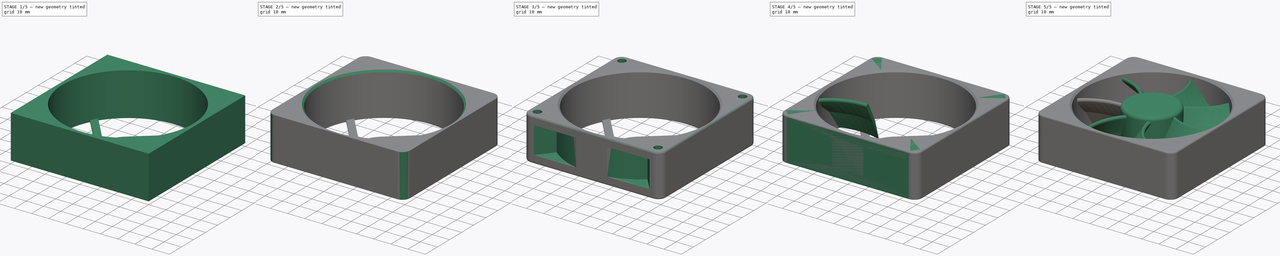
[diagram: build sequence overview — one tinted view per stage of 5, left to right]
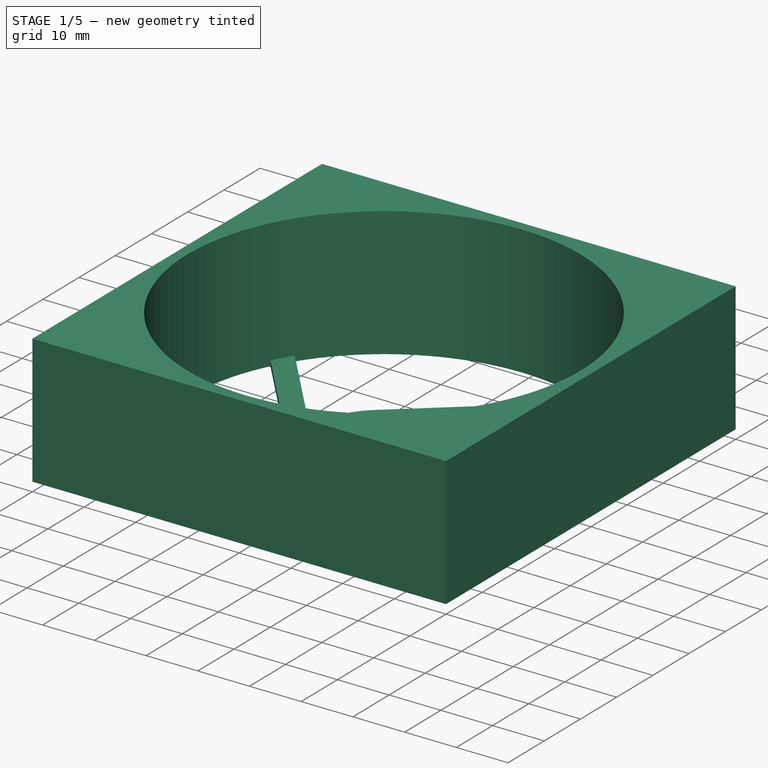
[diagram: stage 1 of 5 — iso view after this stage's code; geometry added in this stage tinted green]
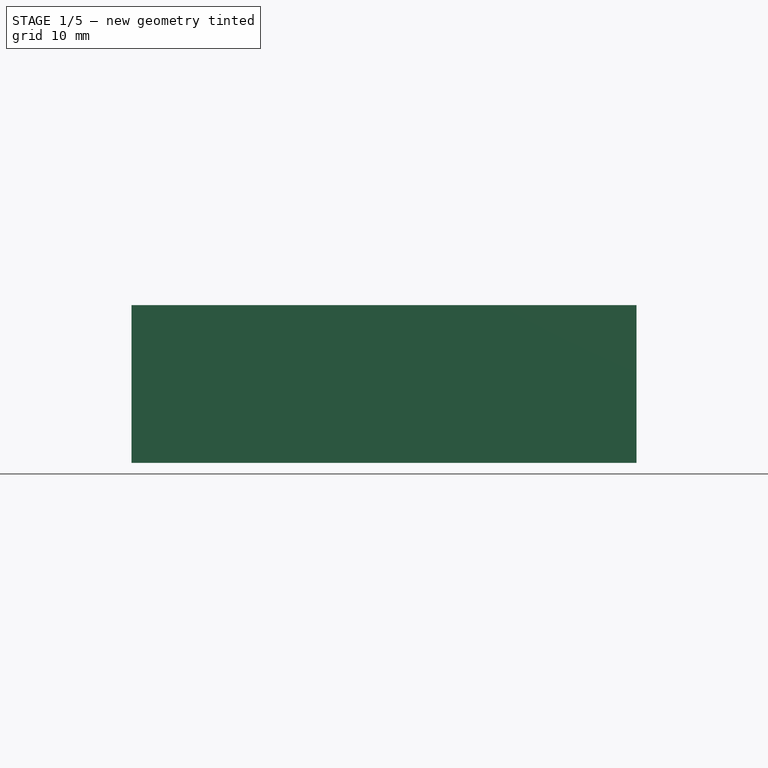
[diagram: stage 1 of 5 — front view after this stage's code; geometry added in this stage tinted green]
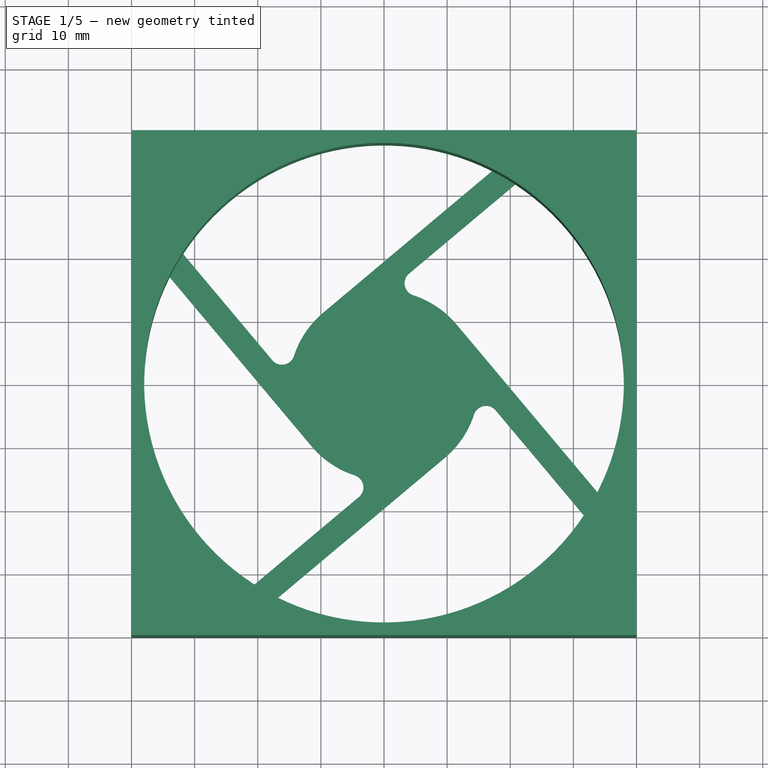
[diagram: stage 1 of 5 — top view after this stage's code; geometry added in this stage tinted green]
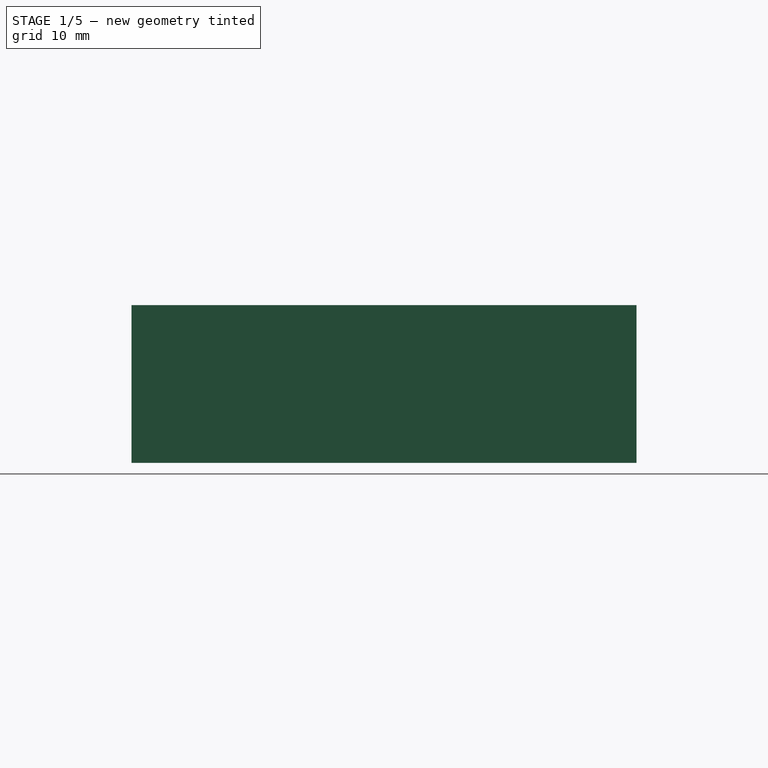
[diagram: stage 1 of 5 — right view after this stage's code; geometry added in this stage tinted green]
FCSTD DOCUMENT  (FreeCAD 0.18R4 (GitTag))
Label: Fan_Parametric
License: All rights reserved
LicenseURL: http://en.wikipedia.org/wiki/All_rights_reserved
objects: Sketcher::SketchObject×10, PartDesign::Fillet×5, PartDesign::Body×3, PartDesign::Pocket×3, PartDesign::MultiTransform×3, PartDesign::Pad×2, PartDesign::Plane×2, PartDesign::Groove×2, PartDesign::PolarPattern×2, Spreadsheet::Sheet×1, PartDesign::AdditivePipe×1, Part::FeaturePython×1, PartDesign::Chamfer×1, PartDesign::Mirrored×1
note: 44 computed .brp shape members not serialized (recipe doc carries the construction recipe); baked Part::Feature solids carry a one-line shape summary decoded from their .brp

FEATURE [Sketcher::SketchObject] Sketch009  label="Sketch_OuterFrame"
  MapMode = 5
  Support = -> [XY_Plane003]
  expr: Constraints[9] = Spreadsheet.Lh
  sketch-geometry (4):
    g0: LineSegment StartX=-40 StartY=40 StartZ=0 EndX=40 EndY=40 EndZ=0
    g1: LineSegment StartX=40 StartY=40 StartZ=0 EndX=40 EndY=-40 EndZ=0
    g2: LineSegment StartX=40 StartY=-40 StartZ=0 EndX=-40 EndY=-40 EndZ=0
    g3: LineSegment StartX=-40 StartY=-40 StartZ=0 EndX=-40 EndY=40 EndZ=0
  constraints (10):
    c: Coincident(g0,g1)
    c: Coincident(g1,g2)
    c: Coincident(g2,g3)
    c: Coincident(g3,g0)
    c: Horizontal(g2)
    c: Vertical(g3)
    c: Equal(g0,g1)
    c: Symmetric(g0,g1,g-1)
    c: Symmetric(g0,g0,g-2)
    c: DistanceY(g1,g1) = 80
FEATURE [PartDesign::Pad] Pad001  label="Pad__OuterFrame"
  Length = 24
  Length2 = 1
  Profile = -> Sketch009
  Type = 4
  expr: Length = Spreadsheet.H - 1
FEATURE [Sketcher::SketchObject] Sketch010  label="Sketch_InnerCylinder"
  MapMode = 5
  Placement = pos=(0,0,24) rot=(0,0,1;0rad)
  Support = -> [Pad001]
  expr: Constraints[1] = Spreadsheet.Lh - 2 * Spreadsheet.T
  sketch-geometry (1):
    g0: Circle CenterX=0 CenterY=0 CenterZ=0 NormalX=0 NormalY=0 NormalZ=1 AngleXU=0 Radius=38
  constraints (2):
    c: Coincident(g0,g-1)
    c: Diameter(g0) = 76
FEATURE [PartDesign::Pocket] Pocket  label="Pocket_InnerCylinder"
  BaseFeature = -> Pad001
  Length = 24
  Length2 = 100
  Profile = -> Sketch010
  Type = 0
  expr: Length = Spreadsheet.H - 1
FEATURE [Sketcher::SketchObject] Sketch011  label="Sketch_FrameRear"
  MapMode = 5
  Placement = pos=(0,0,-1) rot=(1,0,0;3.14159rad)
  Support = -> [Pocket]
  expr: Constraints[20] = Spreadsheet.Lh / 20
  expr: Constraints[3] = Spreadsheet.Di
  expr: Constraints[1] = Spreadsheet.Lh - 2 * Spreadsheet.T
  sketch-geometry (8):
    g0: Circle [constr] CenterX=0 CenterY=0 CenterZ=0 NormalX=0 NormalY=0 NormalZ=1 AngleXU=0 Radius=38
    g1: Circle [constr] CenterX=0 CenterY=0 CenterZ=0 NormalX=0 NormalY=0 NormalZ=1 AngleXU=0 Radius=15
    g2: LineSegment StartX=9.64185 StartY=11.4906 StartZ=0 EndX=-17.104 EndY=33.9331 EndZ=0
    g3: ArcOfCircle CenterX=0 CenterY=0 CenterZ=0 NormalX=0 NormalY=0 NormalZ=1 AngleXU=0 Radius=38 StartAngle=0.578988 EndAngle=2.03768
    g4: ArcOfCircle CenterX=0 CenterY=0 CenterZ=0 NormalX=0 NormalY=0 NormalZ=1 AngleXU=0 Radius=15 StartAngle=0.314758 EndAngle=0.872661
    g5: LineSegment StartX=31.8066 StartY=20.7927 StartZ=0 EndX=17.6969 EndY=3.97739 EndZ=0
    g6: ArcOfCircle CenterX=16.1648 CenterY=5.26296 CenterZ=0 NormalX=0 NormalY=0 NormalZ=1 AngleXU=0 Radius=2 StartAngle=3.45635 EndAngle=5.58505
    g7: LineSegment [constr] StartX=11.4907 StartY=-9.64178 StartZ=0 EndX=33.9331 EndY=17.104 EndZ=0
  constraints (22):
    c: Coincident(g0,g-1)
    c: Diameter(g0) = 76
    c: Coincident(g1,g-1)
    c: Diameter(g1) = 30
    c: PointOnObject(g2,g1)
    c: PointOnObject(g2,g0)
    c: Tangent(g2,g1)
    c: Angle(g2,g-1) = 0.698132
    c: Coincident(g3,g-1)
    c: Coincident(g3,g2)
    c: Coincident(g4,g3)
    c: Coincident(g4,g2)
    c: Coincident(g3,g5)
    c: Tangent(g5,g6) = 1.5708
    c: Tangent(g6,g4) = 1.5708
    c: PointOnObject(g7,g1)
    c: PointOnObject(g7,g0)
    c: Tangent(g7,g1)
    c: Angle(g2,g7) = 1.5708
    c: Parallel(g5,g7)
    c: Distance(g5,g7) = 4
    c: Radius(g6) = 2
FEATURE [PartDesign::Pocket] Pocket001  label="Pocket_FrameRear"
  BaseFeature = -> Pocket
  Length = 7
  Length2 = 96
  Midplane = true
  Profile = -> Sketch011
  Type = 1
FEATURE [PartDesign::PolarPattern] PolarPattern
  Angle = 360
  Axis = -> Sketch011 [N_Axis]
  Occurrences = 4
FEATURE [PartDesign::MultiTransform] MultiTransform
  BaseFeature = -> Pocket001
  Originals = -> [Pocket001]
  Transformations = -> [PolarPattern]
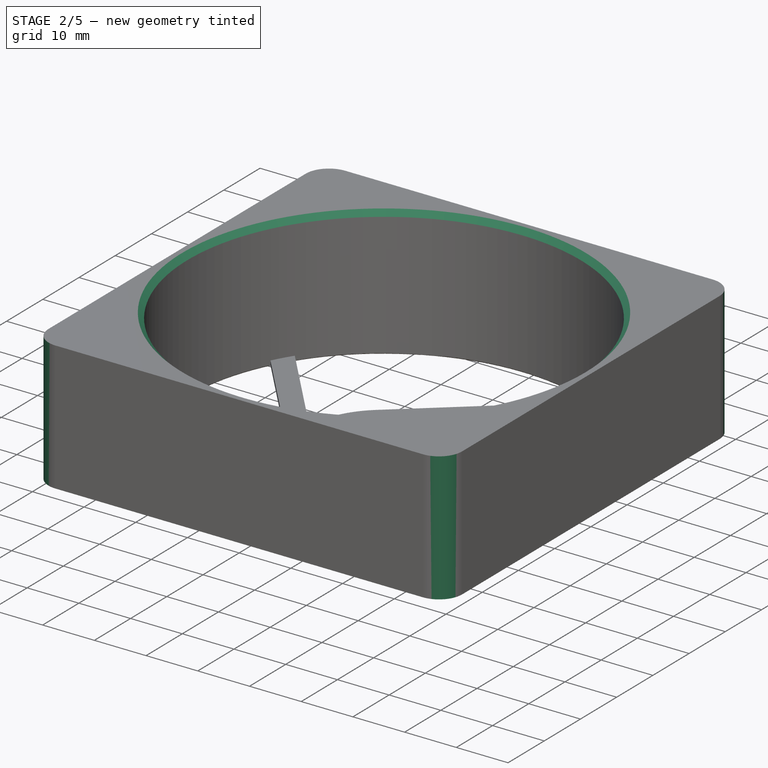
[diagram: stage 2 of 5 — iso view after this stage's code; geometry added in this stage tinted green]
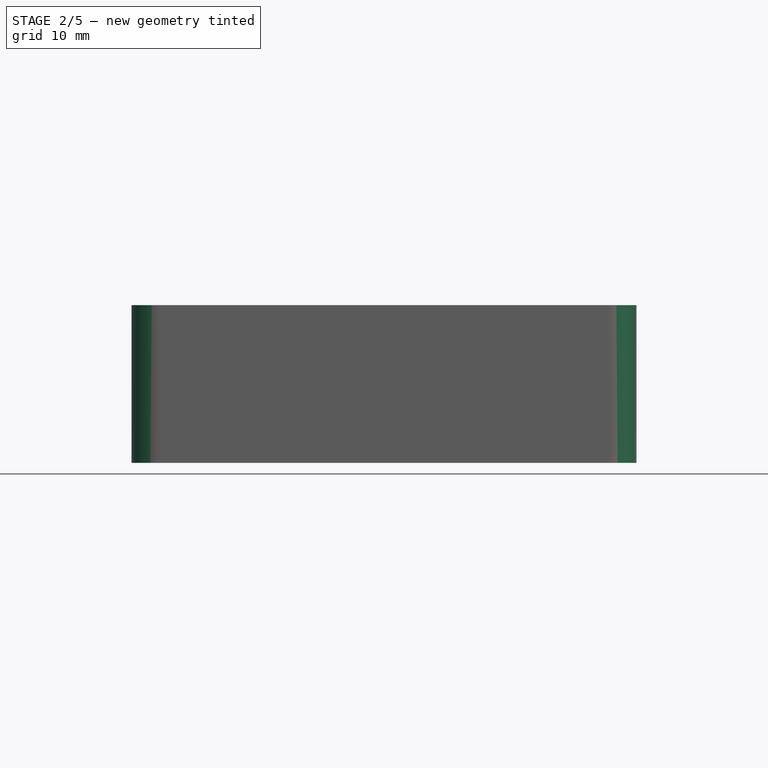
[diagram: stage 2 of 5 — front view after this stage's code; geometry added in this stage tinted green]
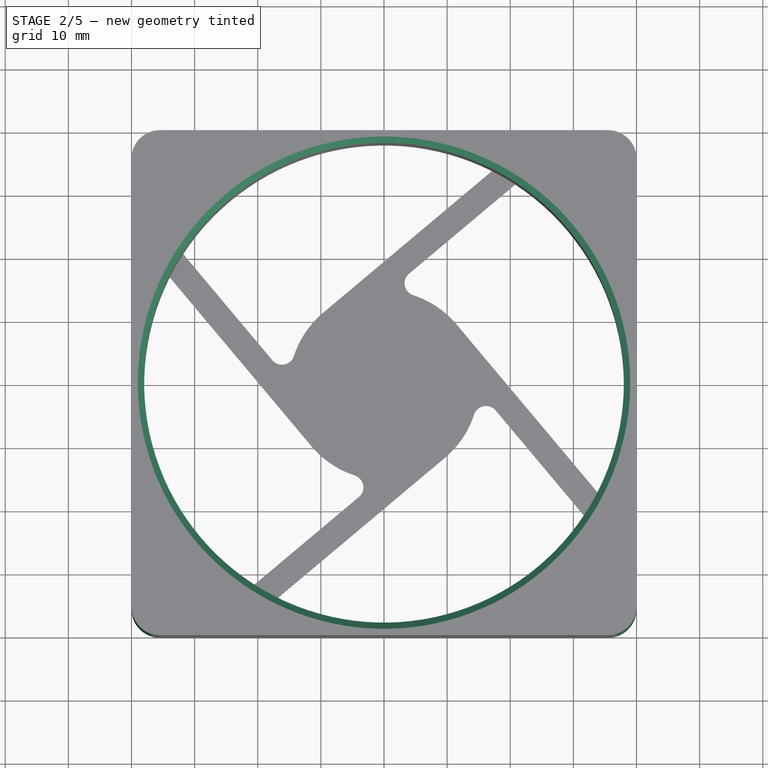
[diagram: stage 2 of 5 — top view after this stage's code; geometry added in this stage tinted green]
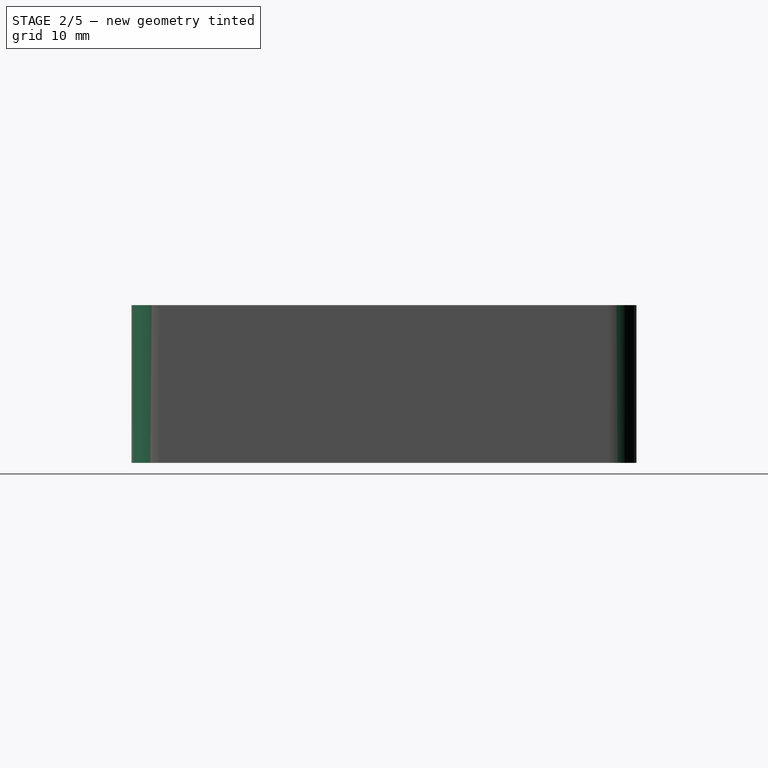
[diagram: stage 2 of 5 — right view after this stage's code; geometry added in this stage tinted green]
FEATURE [PartDesign::Fillet] Fillet001  label="Fillet_InnerCylRear"
  Base = -> MultiTransform [Edge25,Edge24,Edge23,Edge22,Edge26,Edge16,Edge15,Edge13,Edge19,Edge21,Edge31,Edge29]
  BaseFeature = -> MultiTransform
  Radius = 0.2
FEATURE [PartDesign::Fillet] Fillet002  label="Fillet_OuterEdges"
  Base = -> Fillet001 [Edge35,Edge36,Edge40,Edge38]
  BaseFeature = -> Fillet001
  Radius = 4.5
  expr: Radius = Spreadsheet.Ddh
FEATURE [PartDesign::Chamfer] Chamfer  label="Chamfer_InnerCylFront"
  Base = -> Fillet002 [Edge87]
  BaseFeature = -> Fillet002
  Size = 1
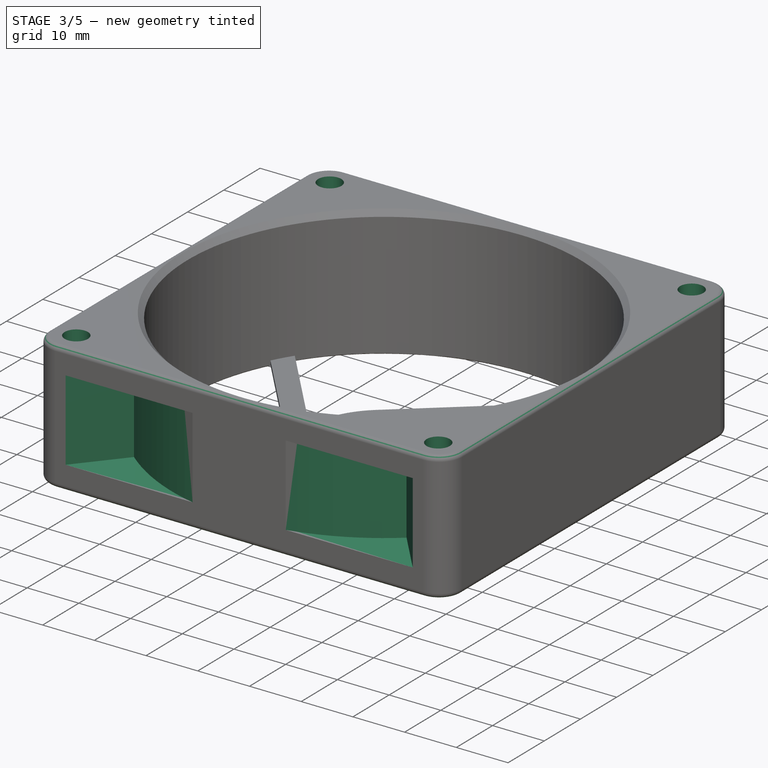
[diagram: stage 3 of 5 — iso view after this stage's code; geometry added in this stage tinted green]
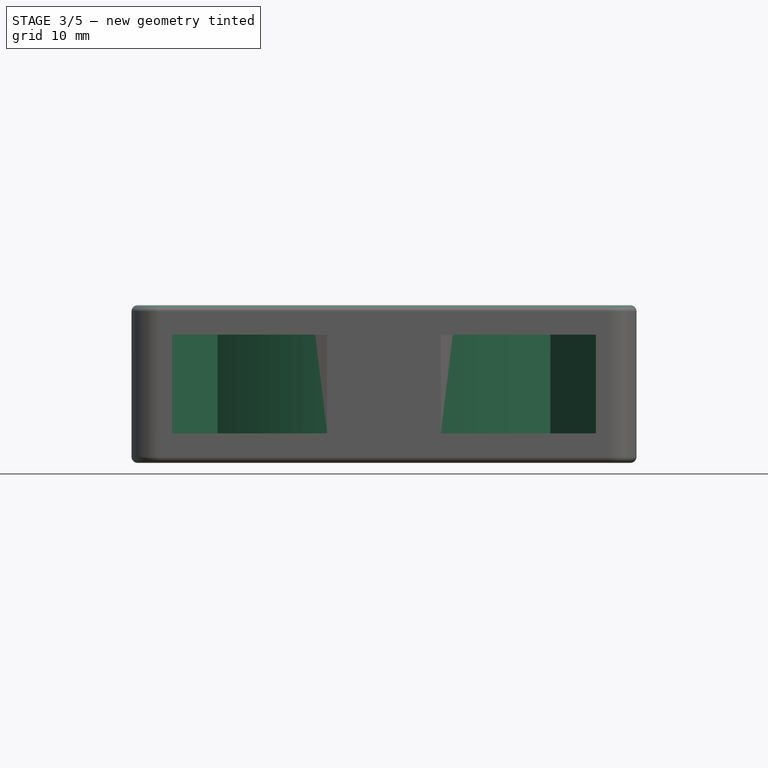
[diagram: stage 3 of 5 — front view after this stage's code; geometry added in this stage tinted green]
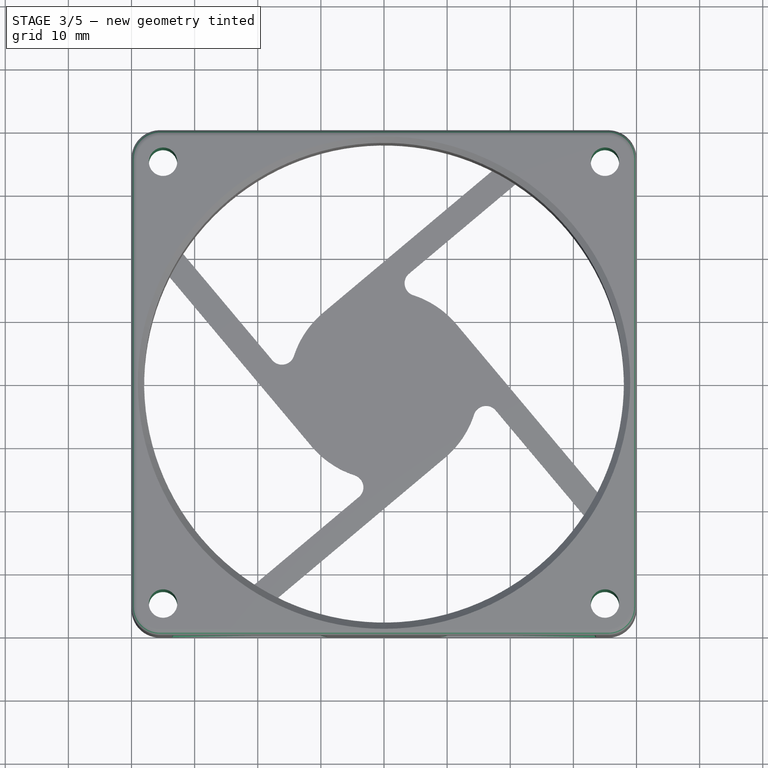
[diagram: stage 3 of 5 — top view after this stage's code; geometry added in this stage tinted green]
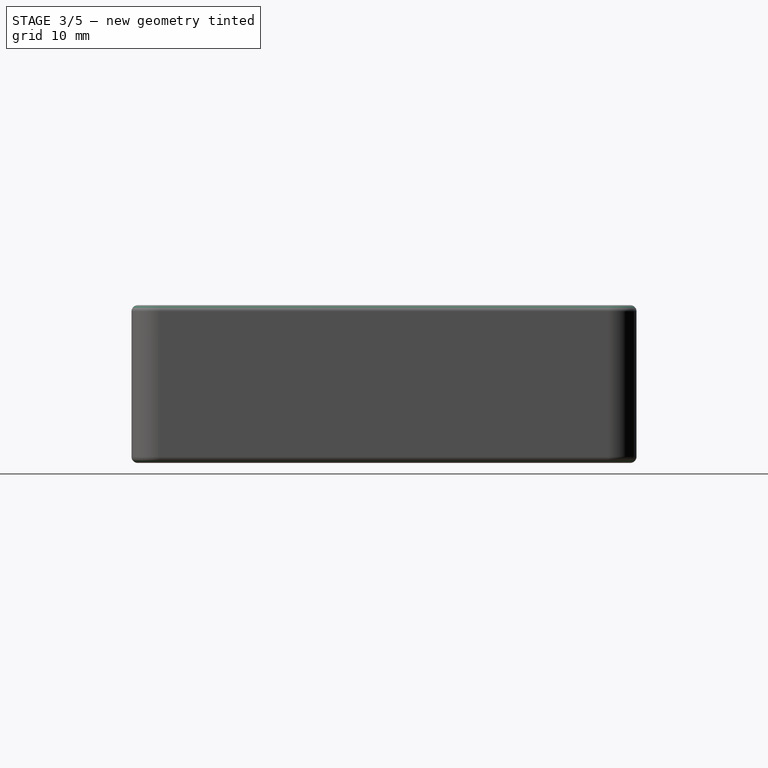
[diagram: stage 3 of 5 — right view after this stage's code; geometry added in this stage tinted green]
FEATURE [PartDesign::Fillet] Fillet004  label="Fillet_OuterFrameRear"
  Base = -> Chamfer [Edge51,Edge14]
  BaseFeature = -> Chamfer
  Radius = 1
FEATURE [Sketcher::SketchObject] Sketch012  label="Sketch_MountHoles"
  MapMode = 5
  Placement = pos=(0,0,24) rot=(0,0,1;0rad)
  Support = -> [Fillet004]
  expr: Constraints[4] = Spreadsheet.Ddh
  expr: Constraints[2] = Spreadsheet.Ldh / 2
  expr: Constraints[1] = Spreadsheet.Ldh
  sketch-geometry (2):
    g0: Circle CenterX=-35 CenterY=35 CenterZ=0 NormalX=0 NormalY=0 NormalZ=1 AngleXU=0 Radius=2.25
    g1: Circle CenterX=35 CenterY=35 CenterZ=0 NormalX=0 NormalY=0 NormalZ=1 AngleXU=0 Radius=2.25
  constraints (5):
    c: Symmetric(g0,g1,g-2)
    c: DistanceX(g0,g1) = 70
    c: DistanceY(g-1,g1) = 35
    c: Equal(g0,g1)
    c: Diameter(g0) = 4.5
FEATURE [PartDesign::Pocket] Pocket002  label="Pocket_MountHoles"
  BaseFeature = -> Fillet004
  Length = 5
  Length2 = 100
  Profile = -> Sketch012
  Type = 1
FEATURE [PartDesign::Mirrored] Mirrored  label="Mirrored_MountHoles"
  MirrorPlane = -> XZ_Plane003
FEATURE [PartDesign::MultiTransform] MultiTransform001  label="MultiTransform_MountHoles"
  BaseFeature = -> Pocket002
  Originals = -> [Pocket002]
  Transformations = -> [Mirrored]
FEATURE [Sketcher::SketchObject] Sketch013  label="Sketch_OuterSideGroove"
  MapMode = 5
  Placement = pos=(0,0,0) rot=(0.57735,0.57735,0.57735;2.0944rad)
  Support = -> [YZ_Plane003]
  expr: Constraints[14] = Spreadsheet_Fan_dim.Lh / 2 * 1.5
  expr: Constraints[12] = Spreadsheet.Lh / 2 + 1
  expr: Constraints[11] = Spreadsheet.H / 2 - 1
  expr: Constraints[8] = Spreadsheet.H / 1.6
  sketch-geometry (5):
    g0: LineSegment StartX=-60 StartY=19.3125 StartZ=0 EndX=-41 EndY=19.3125 EndZ=0
    g1: LineSegment StartX=-41 StartY=19.3125 StartZ=0 EndX=-41 EndY=3.6875 EndZ=0
    g2: LineSegment StartX=-41 StartY=3.6875 StartZ=0 EndX=-60 EndY=3.6875 EndZ=0
    g3: LineSegment StartX=-60 StartY=3.6875 StartZ=0 EndX=-60 EndY=19.3125 EndZ=0
    g4: LineSegment [constr] StartX=-60 StartY=11.5 StartZ=0 EndX=-41 EndY=11.5 EndZ=0
  constraints (15):
    c: Coincident(g0,g1)
    c: Coincident(g1,g2)
    c: Coincident(g2,g3)
    c: Coincident(g3,g0)
    c: Horizontal(g0)
    c: Horizontal(g2)
    c: Vertical(g1)
    c: Vertical(g3)
    c: DistanceY(g3,g3) = 15.625
    c: PointOnObject(g4,g3)
    c: Symmetric(g0,g2,g4)
    c: DistanceY(g-1,g4) = 11.5
    c: DistanceX(g1,g-1) = 41
    c: PointOnObject(g4,g1)
    c: DistanceX(g0,g-1) = 60
FEATURE [PartDesign::Groove] Groove001  label="Groove_OuterSide"
  Angle = 80
  Axis = (-2e-16,3e-16,1)
  Base = (0,0,0)
  BaseFeature = -> MultiTransform001
  Midplane = true
  Profile = -> Sketch013
  ReferenceAxis = -> Sketch013 [V_Axis]
  expr: Angle = Spreadsheet_Fan_dim.GrAngle
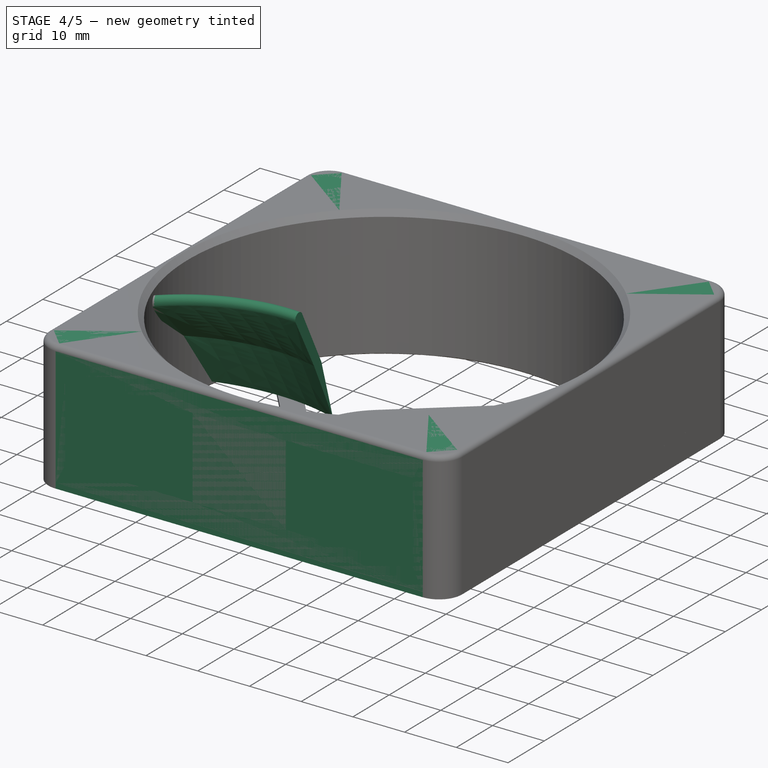
[diagram: stage 4 of 5 — iso view after this stage's code; geometry added in this stage tinted green]
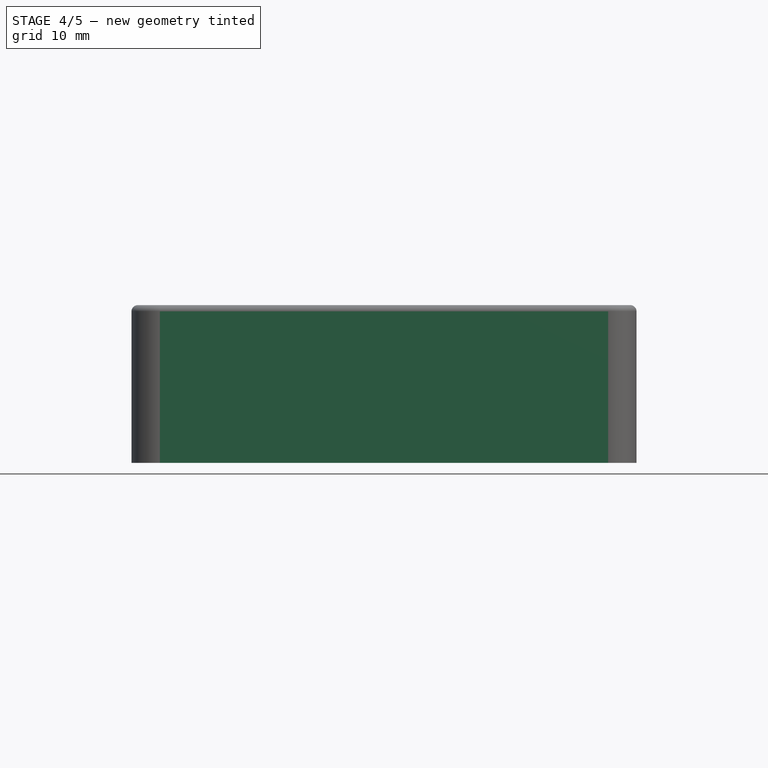
[diagram: stage 4 of 5 — front view after this stage's code; geometry added in this stage tinted green]
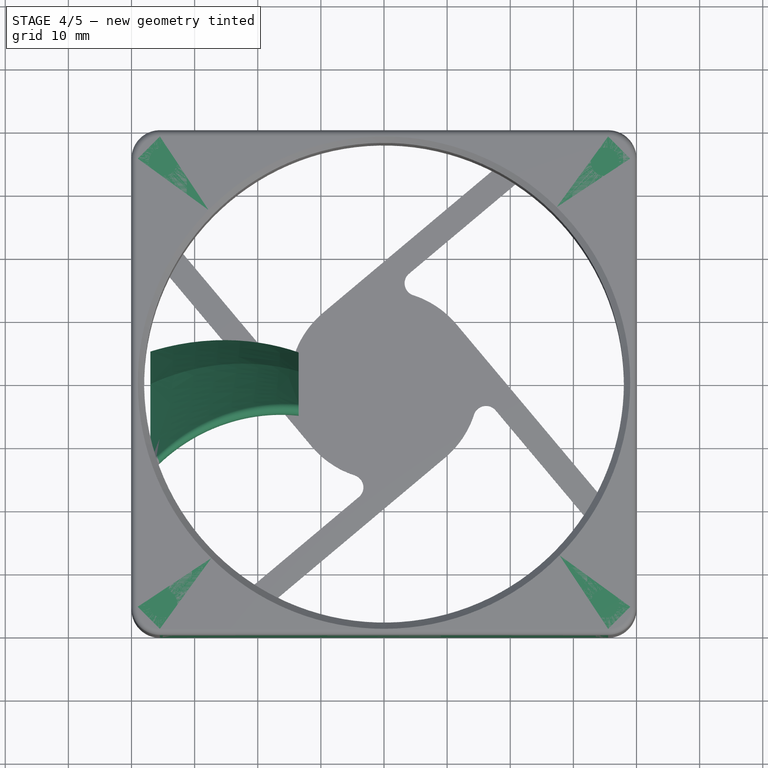
[diagram: stage 4 of 5 — top view after this stage's code; geometry added in this stage tinted green]
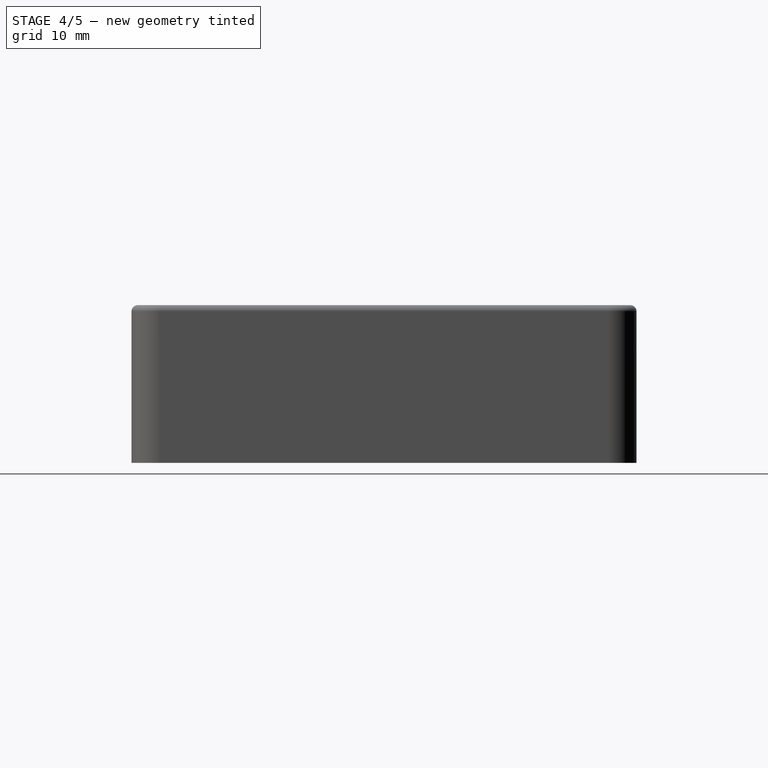
[diagram: stage 4 of 5 — right view after this stage's code; geometry added in this stage tinted green]
FEATURE [PartDesign::Body] Body  label="Body_inner_Fan_Motor_Housing"
  Group = -> [Sketch,Pad,Fillet]
  Origin = -> Origin
  Tip = -> Fillet
FEATURE [PartDesign::Plane] DatumPlane  label="DatumPlane_inner_Blade_Sketch"
  AttachmentOffset = pos=(0,0,-13.5145) rot=(0,0,1;0rad)
  Length = 27.5501
  MapMode = 5
  Placement = pos=(-13.5145,3e-15,-3e-15) rot=(0.57735,0.57735,0.57735;2.0944rad)
  ResizeMode = 0
  Support = -> [YZ_Plane002]
  Width = 37.3267
  expr: AttachmentOffset.Base.z = -Spreadsheet.di
FEATURE [PartDesign::Plane] DatumPlane001  label="DatumPlane_outer_Blade_Sketch"
  AttachmentOffset = pos=(0,0,-37) rot=(0,0,1;0rad)
  Length = 27.5501
  MapMode = 5
  Placement = pos=(-37,8.2e-15,-8.2e-15) rot=(0.57735,0.57735,0.57735;2.0944rad)
  ResizeMode = 0
  Support = -> [YZ_Plane002]
  Width = 37.3267
  expr: AttachmentOffset.Base.z = -Spreadsheet.do
FEATURE [Sketcher::SketchObject] Sketch005  label="Sketch_inner_Blade"
  MapMode = 5
  Placement = pos=(-13.5145,3e-15,-3e-15) rot=(0.57735,0.57735,0.57735;2.0944rad)
  Support = -> [DatumPlane]
  expr: Constraints[18] = Spreadsheet.Hi / 2
  expr: Constraints[9] = Spreadsheet.Hi
  expr: Constraints[10] = Spreadsheet.hi * 0.8
  sketch-geometry (9):
    g0: LineSegment [constr] StartX=-5.2066 StartY=0 StartZ=0 EndX=5.2066 EndY=0 EndZ=0
    g1: LineSegment [constr] StartX=5.2066 StartY=0 StartZ=0 EndX=5.2066 EndY=22 EndZ=0
    g2: LineSegment [constr] StartX=5.2066 StartY=22 StartZ=0 EndX=-5.2066 EndY=22 EndZ=0
    g3: LineSegment [constr] StartX=-5.2066 StartY=22 StartZ=0 EndX=-5.2066 EndY=0 EndZ=0
    g4: LineSegment StartX=5.2066 StartY=0 StartZ=0 EndX=0 EndY=11 EndZ=0
    g5: LineSegment StartX=0 StartY=11 StartZ=0 EndX=-5.0887 EndY=20.5289 EndZ=0
    g6: ArcOfCircle CenterX=-4.2066 CenterY=21 CenterZ=0 NormalX=0 NormalY=0 NormalZ=1 AngleXU=0 Radius=1 StartAngle=0.470405 EndAngle=3.63209
    g7: LineSegment StartX=-3.31522 StartY=21.4532 StartZ=0 EndX=2 EndY=11 EndZ=0
    g8: LineSegment StartX=2 StartY=11 StartZ=0 EndX=5.2066 EndY=0 EndZ=0
  constraints (24):
    c: Coincident(g0,g1)
    c: Coincident(g1,g2)
    c: Coincident(g2,g3)
    c: Coincident(g3,g0)
    c: Horizontal(g2)
    c: Vertical(g1)
    c: Vertical(g3)
    c: PointOnObject(g0,g-1)
    c: Symmetric(g0,g0,g-2)
    c: DistanceY(g1,g1) = 22
    c: DistanceX(g0,g0) = 10.4132
    c: Tangent(g5,g6) = 1.5708
    c: Tangent(g6,g7) = 1.5708
    c: Coincident(g8,g4)
    c: Coincident(g5,g4)
    c: Coincident(g7,g8)
    c: Horizontal(g4,g7)
    c: DistanceX(g4,g7) = 2
    c: DistanceY(g4,g4) = 11
    c: Diameter(g6) = 2
    c: Coincident(g4,g0)
    c: PointOnObject(g4,g-2)
    c: DistanceY(g6,g2) = 1
    c: DistanceX(g2,g6) = 1
FEATURE [Sketcher::SketchObject] Sketch006  label="Sketch_outer_Blade"
  MapMode = 5
  Placement = pos=(-37,8.2e-15,-8.2e-15) rot=(0.57735,0.57735,0.57735;2.0944rad)
  Support = -> [DatumPlane001]
  expr: Constraints[8] = Spreadsheet.Hi
  expr: Constraints[19] = Spreadsheet.Hi / 2
  expr: Constraints[21] = Spreadsheet.ho / 4
  expr: Constraints[9] = Spreadsheet.ho * 0.8
  sketch-geometry (9):
    g0: LineSegment [constr] StartX=-14.2546 StartY=0 StartZ=0 EndX=14.2546 EndY=0 EndZ=0
    g1: LineSegment [constr] StartX=14.2546 StartY=0 StartZ=0 EndX=14.2546 EndY=22 EndZ=0
    g2: LineSegment [constr] StartX=14.2546 StartY=22 StartZ=0 EndX=-14.2546 EndY=22 EndZ=0
    g3: LineSegment [constr] StartX=-14.2546 StartY=22 StartZ=0 EndX=-14.2546 EndY=0 EndZ=0
    g4: LineSegment StartX=5.34548 StartY=0 StartZ=0 EndX=0 EndY=11 EndZ=0
    g5: LineSegment StartX=0 StartY=11 StartZ=0 EndX=-12.6053 EndY=21.7606 EndZ=0
    g6: ArcOfCircle CenterX=-13.2546 CenterY=21 CenterZ=0 NormalX=0 NormalY=0 NormalZ=1 AngleXU=0 Radius=1 StartAngle=0.864187 EndAngle=4.03148
    g7: LineSegment StartX=-13.8841 StartY=20.223 StartZ=0 EndX=-2.5 EndY=11 EndZ=0
    g8: LineSegment StartX=-2.5 StartY=11 StartZ=0 EndX=5.34548 EndY=0 EndZ=0
  constraints (25):
    c: Coincident(g0,g1)
    c: Coincident(g1,g2)
    c: Coincident(g2,g3)
    c: Coincident(g3,g0)
    c: Horizontal(g0)
    c: Vertical(g1)
    c: Vertical(g3)
    c: Symmetric(g1,g2,g-2)
    c: DistanceY(g1,g1) = 22
    c: DistanceX(g0,g0) = 28.5092
    c: Coincident(g4,g5)
    c: Tangent(g5,g6) = -1.5708
    c: Tangent(g6,g7) = -1.5708
    c: Coincident(g7,g8)
    c: Coincident(g8,g4)
    c: Diameter(g6) = 2
    c: DistanceY(g6,g2) = 1
    c: DistanceX(g2,g6) = 1
    c: DistanceX(g7,g4) = 2.5
    c: DistanceY(g4,g7) = 11
    c: PointOnObject(g4,g0)
    c: DistanceX(g4,g0) = 8.90913
    c: PointOnObject(g0,g-1)
    c: PointOnObject(g4,g-2)
    c: Horizontal(g4,g7)
FEATURE [Sketcher::SketchObject] Sketch007
  MapMode = 5
  Placement = pos=(0,0,0) rot=(0.57735,0.57735,0.57735;2.0944rad)
  Support = -> [YZ_Plane002]
  expr: Constraints[9] = Spreadsheet.Do / 2
  expr: Constraints[8] = Spreadsheet.Hi * 2
  sketch-geometry (4):
    g0: LineSegment StartX=37 StartY=22 StartZ=0 EndX=57 EndY=22 EndZ=0
    g1: LineSegment StartX=57 StartY=22 StartZ=0 EndX=57 EndY=-22 EndZ=0
    g2: LineSegment StartX=57 StartY=-22 StartZ=0 EndX=37 EndY=-22 EndZ=0
    g3: LineSegment StartX=37 StartY=-22 StartZ=0 EndX=37 EndY=22 EndZ=0
  constraints (11):
    c: Coincident(g0,g1)
    c: Coincident(g1,g2)
    c: Coincident(g2,g3)
    c: Coincident(g3,g0)
    c: Horizontal(g0)
    c: Horizontal(g2)
    c: Vertical(g1)
    c: Symmetric(g0,g2,g-1)
    c: DistanceY(g1,g1) = 44
    c: DistanceX(g-1,g2) = 37
    c: DistanceX(g0,g0) = 20
FEATURE [Sketcher::SketchObject] Sketch008  label="Sketch_Path_inner_outer"
  ExternalGeometry = -> [Sketch005,Sketch006]
  MapMode = 5
  Support = -> [XY_Plane002]
  expr: Constraints[2] = (Spreadsheet_Fan_dim.do - Spreadsheet_Fan_dim.di) * 1.5
  sketch-geometry (1):
    g0: ArcOfCircle CenterX=-13.5145 CenterY=-30.0216 CenterZ=0 NormalX=0 NormalY=0 NormalZ=1 AngleXU=0 Radius=35.2282 StartAngle=1.5708 EndAngle=2.30052
  constraints (4):
    c: Vertical(g0,g0)
    c: Coincident(g0,g-3)
    c: Radius(g0) = 35.2282
    c: Vertical(g0,g-5)
FEATURE [PartDesign::AdditivePipe] AdditivePipe
  AuxilleryCurvelinear = true
  AuxillerySpineTangent = false
  Binormal = (0,0,0)
  Mode = 0
  Placement = pos=(-13.5145,3e-15,-3e-15) rot=(0.57735,0.57735,0.57735;2.0944rad)
  Profile = -> Sketch005
  Sections = -> [Sketch006]
  Spine = -> Sketch008
  SpineTangent = false
  Transformation = 1
  Transition = 0
FEATURE [PartDesign::Fillet] Fillet003  label="Fillet_OuterFrameFront"
  Base = -> Chamfer [Edge13]
  BaseFeature = -> Chamfer
  Radius = 1
FEATURE [PartDesign::PolarPattern] PolarPattern001  label="PolarPattern_OuterSideGroove"
  Angle = 360
  Axis = -> Z_Axis003
  Occurrences = 4
FEATURE [PartDesign::MultiTransform] MultiTransform002  label="MultiTransform_OuterSideGroove"
  BaseFeature = -> Groove001
  Originals = -> [Groove001]
  Transformations = -> [PolarPattern001]
FEATURE [PartDesign::Body] Body003  label="Housing"
  Group = -> [Sketch009,Pad001,Sketch010,Pocket,Sketch011,Pocket001,MultiTransform,PolarPattern,Fillet001,Fillet002,Chamfer,Fillet003,Fillet004,Sketch012,Pocket002,MultiTransform001,Mirrored,Sketch013,Groove001,MultiTransform002,PolarPattern001]
  Origin = -> Origin003
  Tip = -> MultiTransform002
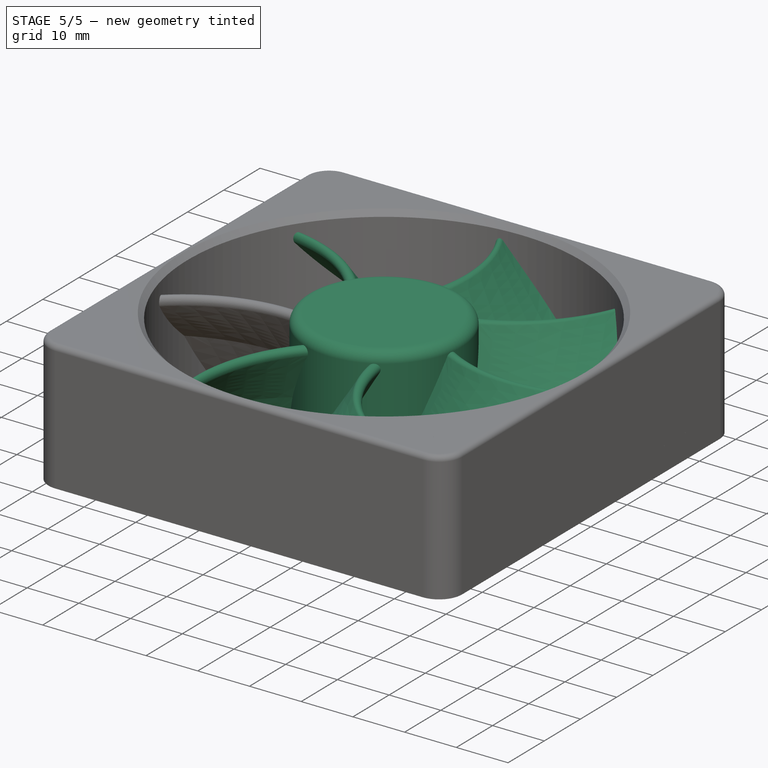
[diagram: stage 5 of 5 — iso view after this stage's code; geometry added in this stage tinted green]
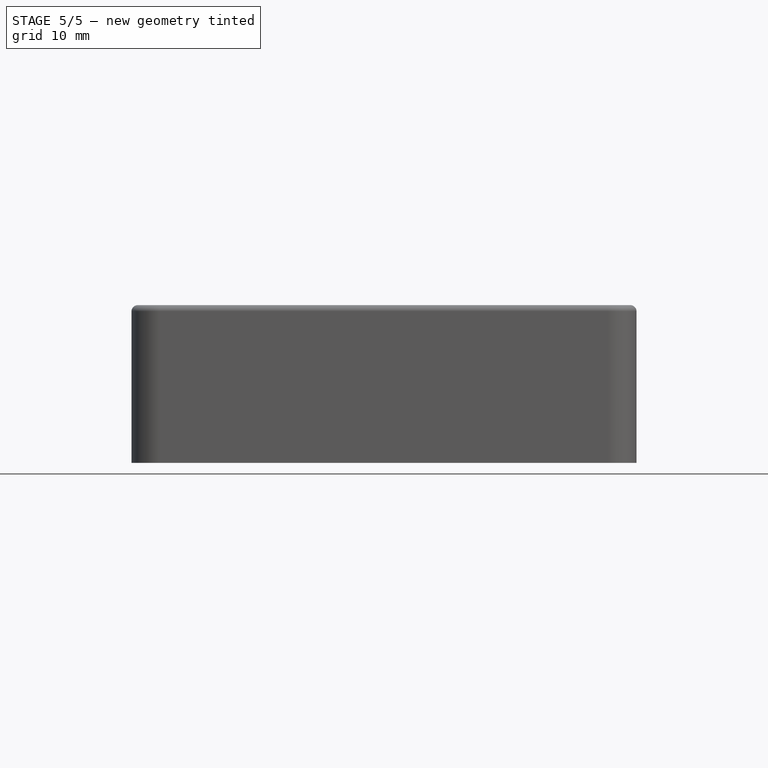
[diagram: stage 5 of 5 — front view after this stage's code; geometry added in this stage tinted green]
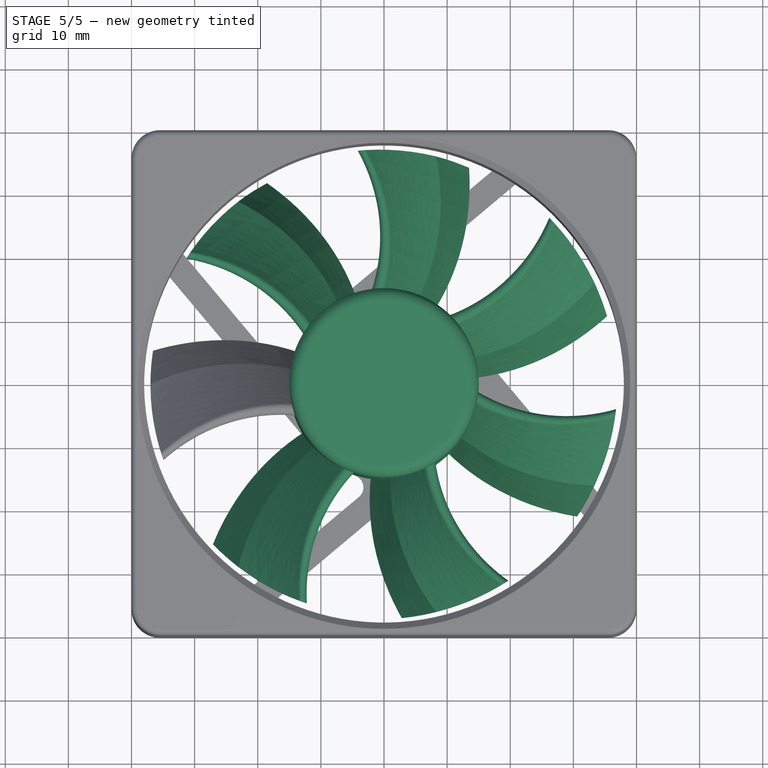
[diagram: stage 5 of 5 — top view after this stage's code; geometry added in this stage tinted green]
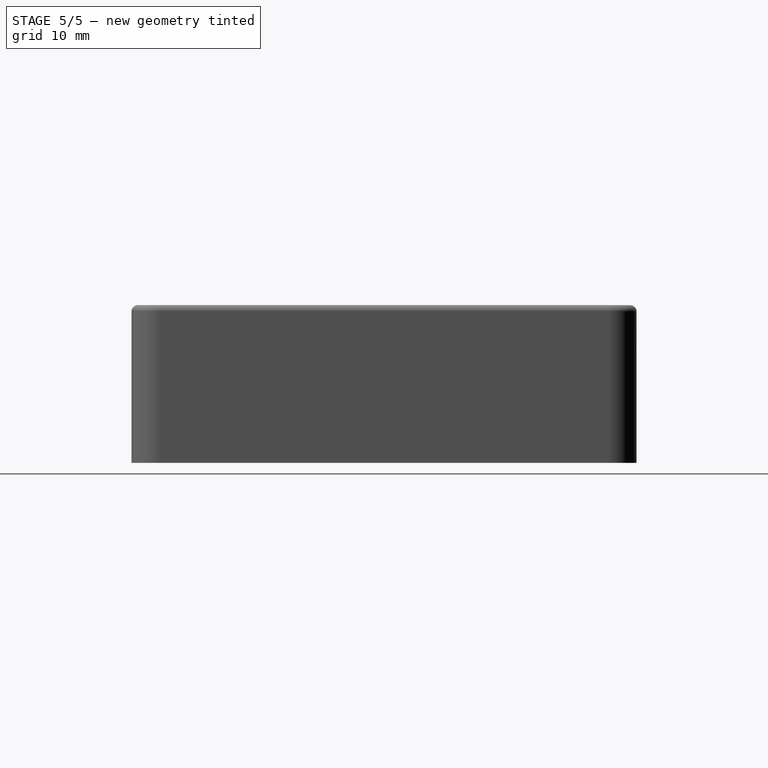
[diagram: stage 5 of 5 — right view after this stage's code; geometry added in this stage tinted green]
FEATURE [Spreadsheet::Sheet] Spreadsheet  label="Spreadsheet_Fan_dim"
  cells = C2=Helper dimensions  (do not change); A3=Diameter inner Motor Housing (Di); B3(Di)=30; A4=Length Fan Housing (Lh); B4(Lh)=80; C4=outer Blade Diameter (Do); D4(Do)==Lh - 2 * T - 2; A5=Frame thicknes (T); B5(T)=2; A6=Fan Height (H); B6(H)=25; C6=inner Fan height (Hi); D6(Hi)==H - 1 - 2; E6=minus 1 mm back minus 2 mm fillet; A7=Drill hole distance (Ldh); B7(Ldh)=70; C7=Length help plane outer Blade sketch (ho); D7(ho)==tan(360 / B9 / 2) * D4; A8=Drill hole diameter (Ddh); B8(Ddh)=4.5; C8=Dist. help plane outer Blade sketch (do); D8(do)==Do / 2; A9=No Blades; B9(n)=7; C9=Length help plane inner Blade sketch (hi); D9(hi)==sin(360 / B9 / 2) * B3; A10=Outer Housing Groove Angle (GrAngle)\n(80° for excluding drill holes)\n(95° for a complete groove); B10(GrAngle)=80; C10=Dist. help plane inner Blade sketch (di); D10(di)==cos(360 / B9 / 2) * B3 / 2
FEATURE [Sketcher::SketchObject] Sketch  label="Sketch_InnerCylinder001"
  MapMode = 5
  Support = -> [XY_Plane]
  expr: Constraints[1] = Spreadsheet.B3
  sketch-geometry (1):
    g0: Circle CenterX=0 CenterY=0 CenterZ=0 NormalX=0 NormalY=0 NormalZ=1 AngleXU=0 Radius=15
  constraints (2):
    c: Coincident(g0,g-1)
    c: Diameter(g0) = 30
FEATURE [PartDesign::Pad] Pad
  Length = 24
  Length2 = 100
  Profile = -> Sketch
  Type = 0
  expr: Length = Spreadsheet.B6 - 1
FEATURE [PartDesign::Fillet] Fillet  label="Fillet_InnerCylinder"
  Base = -> Pad [Edge3]
  BaseFeature = -> Pad
  Radius = 2
FEATURE [PartDesign::Groove] Groove  label="Groove_Blade"
  Angle = 360
  Axis = (-2e-16,3e-16,1)
  Base = (0,0,0)
  BaseFeature = -> AdditivePipe
  Placement = pos=(-13.5145,3e-15,-3e-15) rot=(0.57735,0.57735,0.57735;2.0944rad)
  Profile = -> Sketch007
  ReferenceAxis = -> Sketch007 [V_Axis]
FEATURE [PartDesign::Body] Body002  label="Body_Blade"
  Group = -> [DatumPlane,DatumPlane001,Sketch005,Sketch006,Sketch007,Sketch008,AdditivePipe,Groove]
  Origin = -> Origin002
  Tip = -> Groove
FEATURE [Part::FeaturePython] Array  # Draft array (typed FeaturePython)
  Angle = 360
  ArrayType = 1
  Axis = (0,0,1)
  Base = -> Groove
  Center = (0,0,0)
  Fuse = false
  IntervalAxis = (0,0,0)
  IntervalX = (1,0,0)
  IntervalY = (0,1,0)
  IntervalZ = (0,0,1)
  NumberPolar = 7
  NumberX = 2
  NumberY = 2
  NumberZ = 1
  expr: NumberPolar = Spreadsheet.n
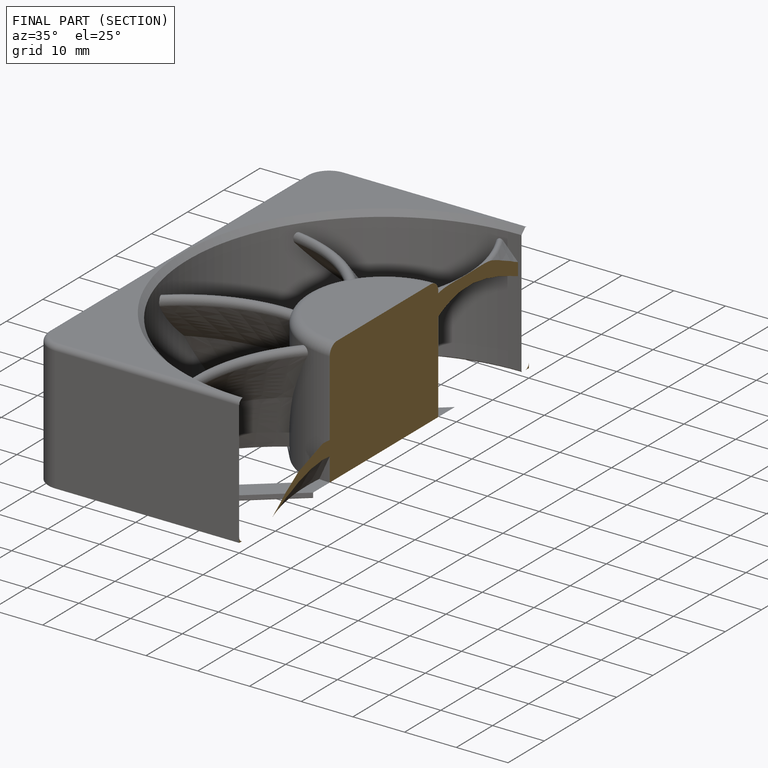
[diagram: finished part — half-section view (interior)]
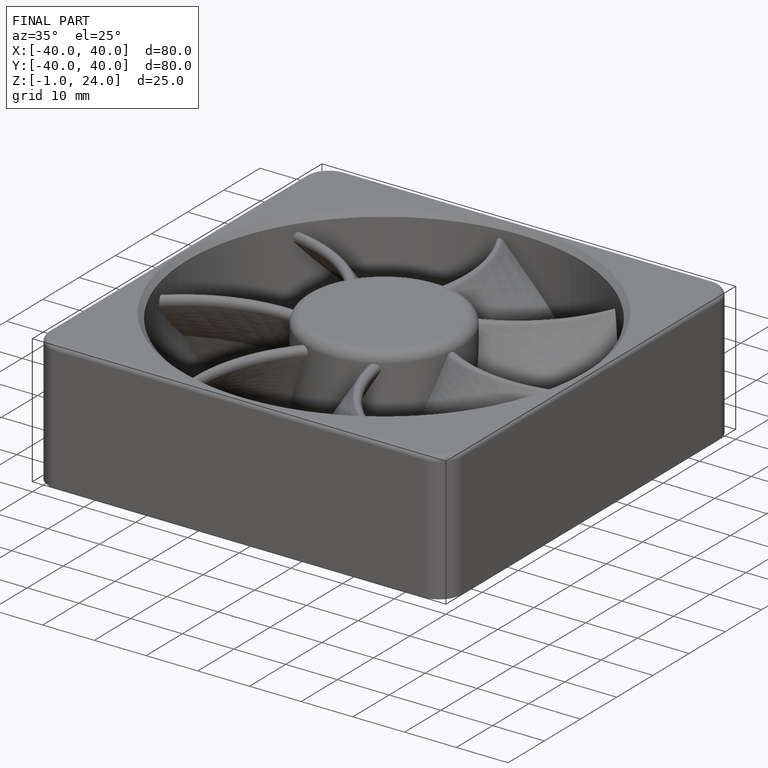
[diagram: finished part — iso view with bounding-box wireframe]
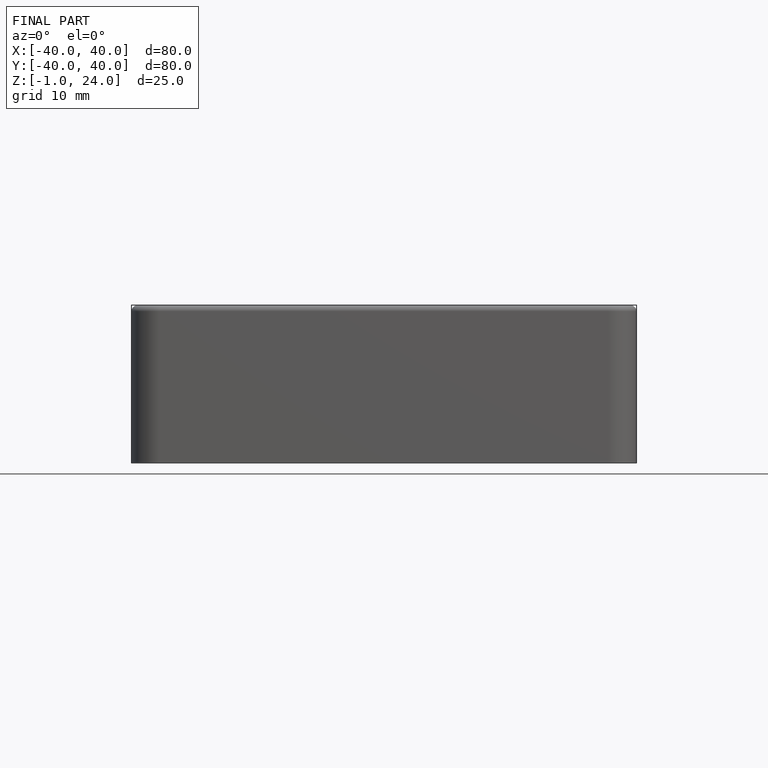
[diagram: finished part — front view with bounding-box wireframe]
